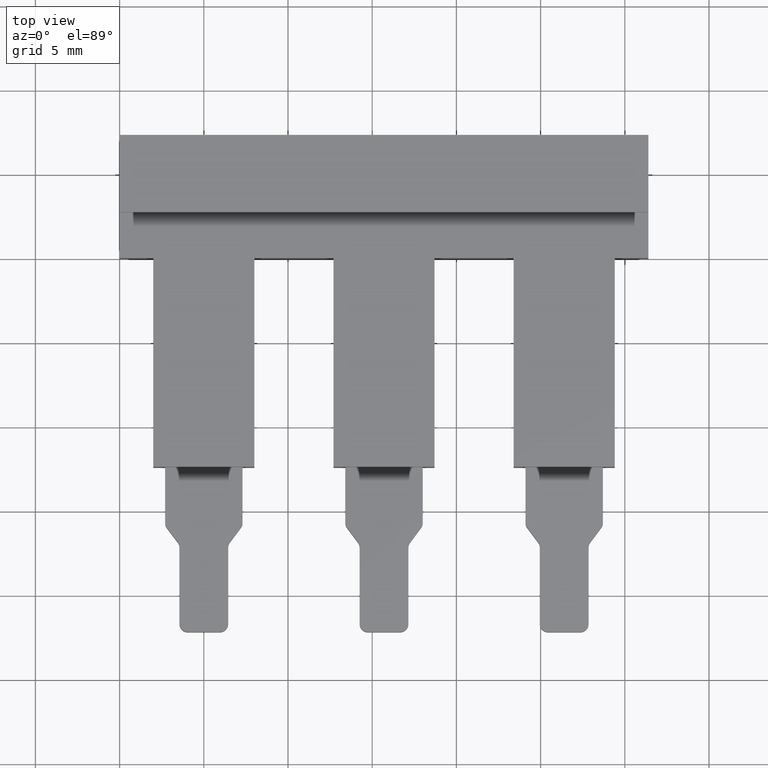
[diagram: clean part render]
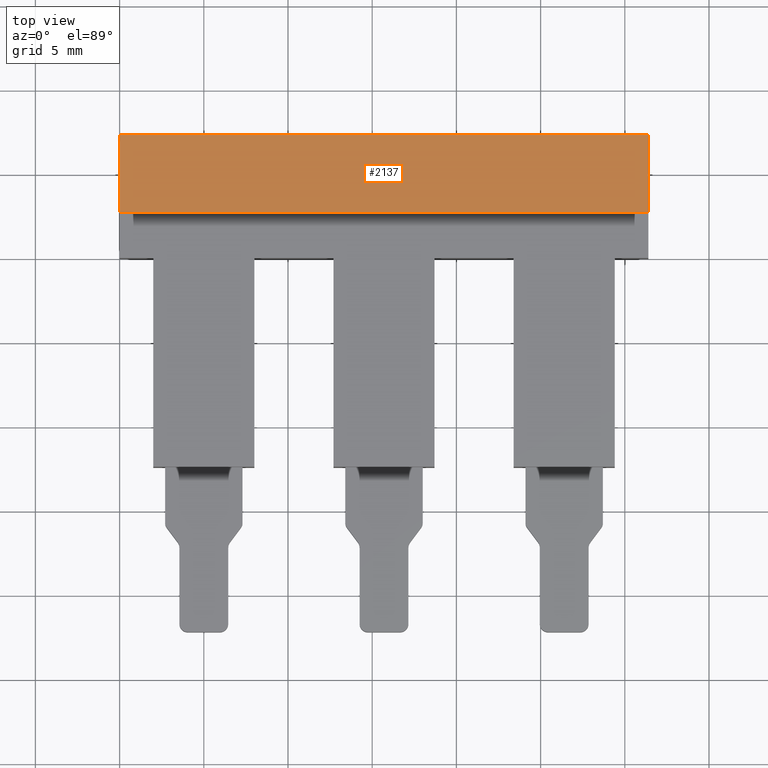
[diagram: same view with one face highlighted and labeled with its STEP entity id]
A machine part, top view. The second image highlights one B-rep face of the part: STEP entity #2137.
In plain terms, the highlighted planar face has unit normal (0, 0, 1).
Its self-contained STEP definition (entity closure, byte-faithful):
#89 = CARTESIAN_POINT ( 'NONE',  ( 0.0000000000000000000, 7.299999999999999800, 4.799999999999999800 ) ) ;
#102 = EDGE_LOOP ( 'NONE', ( #285, #360, #361, #306 ) ) ;
#140 = VERTEX_POINT ( 'NONE', #662 ) ;
#146 = VERTEX_POINT ( 'NONE', #89 ) ;
#165 = VERTEX_POINT ( 'NONE', #655 ) ;
#238 = VERTEX_POINT ( 'NONE', #711 ) ;
#285 = ORIENTED_EDGE ( 'NONE', *, *, #1963, .T. ) ;
#306 = ORIENTED_EDGE ( 'NONE', *, *, #1954, .T. ) ;
#360 = ORIENTED_EDGE ( 'NONE', *, *, #1995, .T. ) ;
#361 = ORIENTED_EDGE ( 'NONE', *, *, #1980, .T. ) ;
#655 = CARTESIAN_POINT ( 'NONE',  ( 31.39999999999999100, 7.300000000000004300, 4.799999999999999800 ) ) ;
#662 = CARTESIAN_POINT ( 'NONE',  ( 31.39999999999999100, 2.700000000000004600, 4.799999999999999800 ) ) ;
#711 = CARTESIAN_POINT ( 'NONE',  ( -1.108295554096292100E-016, 2.699999999999997500, 4.799999999999999800 ) ) ;
#775 = DIRECTION ( 'NONE',  ( 1.000000000000000000, 2.775557561562890400E-016, 0.0000000000000000000 ) ) ;
#777 = LINE ( 'NONE', #812, #925 ) ;
#780 = CARTESIAN_POINT ( 'NONE',  ( 0.0000000000000000000, 7.299999999999999800, 4.799999999999999800 ) ) ;
#793 = DIRECTION ( 'NONE',  ( -2.409338161078894500E-017, -1.000000000000000000, 0.0000000000000000000 ) ) ;
#795 = LINE ( 'NONE', #780, #917 ) ;
#812 = CARTESIAN_POINT ( 'NONE',  ( 31.39999999999999900, 2.700000000000005100, 4.799999999999999800 ) ) ;
#828 = LINE ( 'NONE', #843, #946 ) ;
#843 = CARTESIAN_POINT ( 'NONE',  ( -10.70000000000000300, 7.299999999999993600, 4.799999999999999800 ) ) ;
#846 = DIRECTION ( 'NONE',  ( -1.000000000000000000, -2.775557561562890400E-016, 0.0000000000000000000 ) ) ;
#894 = LINE ( 'NONE', #899, #915 ) ;
#899 = CARTESIAN_POINT ( 'NONE',  ( 31.39999999999999100, 7.300000000000004300, 4.799999999999999800 ) ) ;
#905 = DIRECTION ( 'NONE',  ( -3.016491377670779700E-016, 1.000000000000000000, 0.0000000000000000000 ) ) ;
#915 = VECTOR ( 'NONE', #905, 1000.000000000000000 ) ;
#917 = VECTOR ( 'NONE', #793, 1000.000000000000000 ) ;
#925 = VECTOR ( 'NONE', #775, 1000.000000000000000 ) ;
#946 = VECTOR ( 'NONE', #846, 1000.000000000000000 ) ;
#1111 = AXIS2_PLACEMENT_3D ( 'NONE', #1586, #1579, #1584 ) ;
#1564 = PLANE ( 'NONE',  #1111 ) ;
#1579 = DIRECTION ( 'NONE',  ( 0.0000000000000000000, 0.0000000000000000000, 1.000000000000000000 ) ) ;
#1581 = FACE_OUTER_BOUND ( 'NONE', #102, .T. ) ;
#1584 = DIRECTION ( 'NONE',  ( 1.000000000000000000, 0.0000000000000000000, -0.0000000000000000000 ) ) ;
#1586 = CARTESIAN_POINT ( 'NONE',  ( -10.70000000000000300, 7.299999999999993600, 4.799999999999999800 ) ) ;
#1954 = EDGE_CURVE ( 'NONE', #146, #238, #795, .T. ) ;
#1963 = EDGE_CURVE ( 'NONE', #238, #140, #777, .T. ) ;
#1980 = EDGE_CURVE ( 'NONE', #165, #146, #828, .T. ) ;
#1995 = EDGE_CURVE ( 'NONE', #140, #165, #894, .T. ) ;
#2137 = ADVANCED_FACE ( 'NONE', ( #1581 ), #1564, .T. ) ;